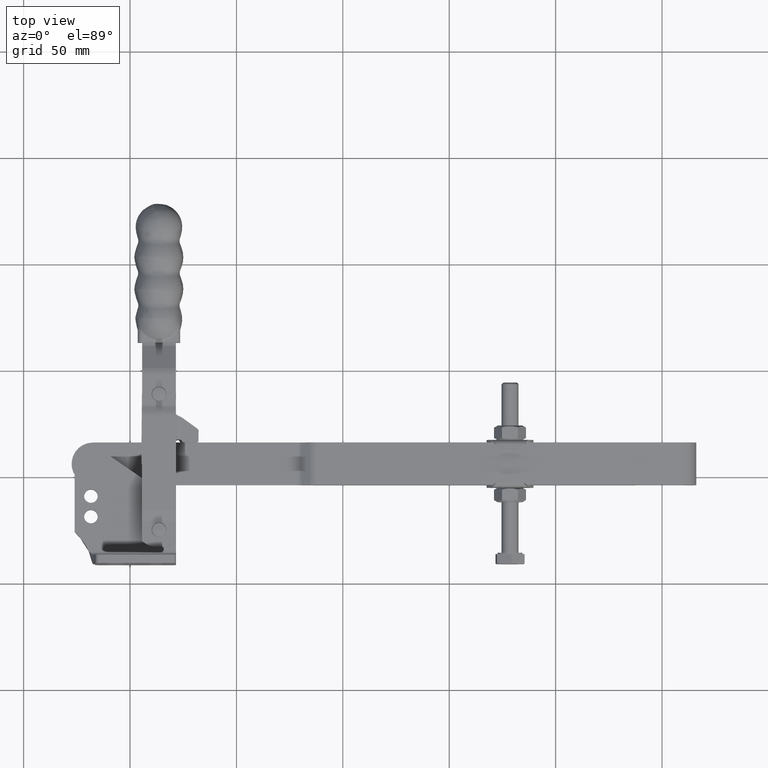
[diagram: clean part render]
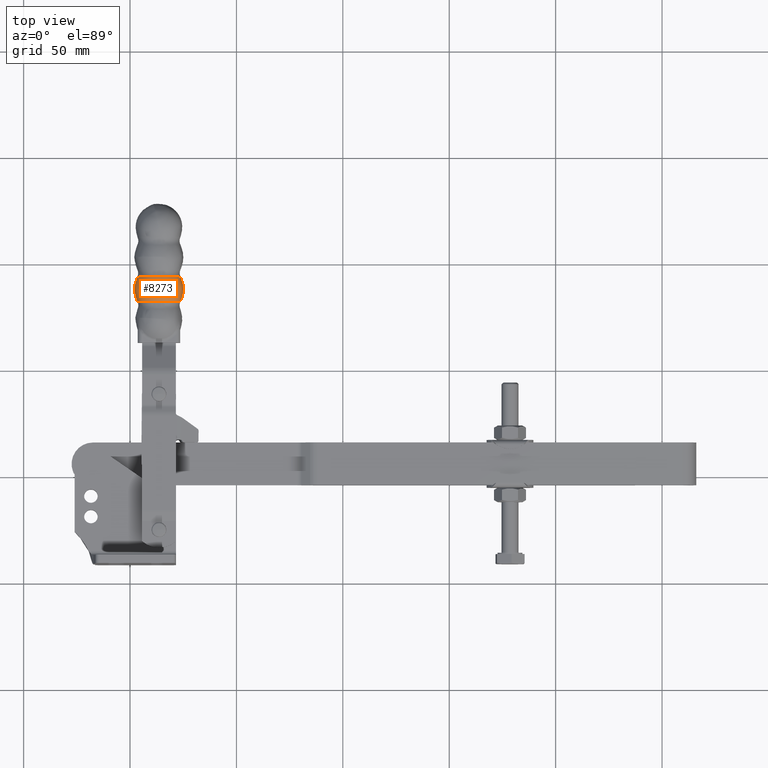
[diagram: same view with one face highlighted and labeled with its STEP entity id]
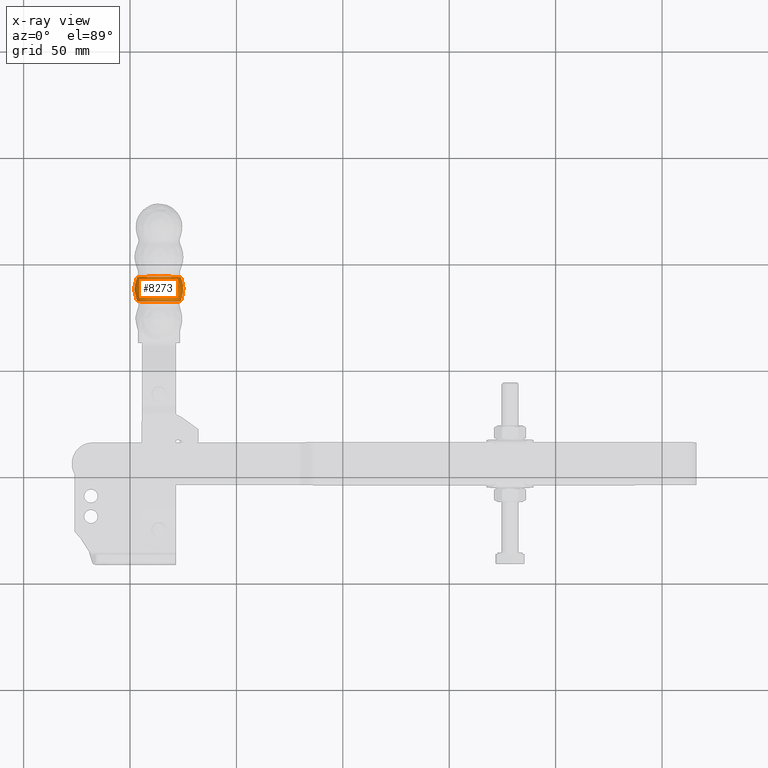
[diagram: x-ray of the same camera — body ghosted, the highlighted face saturated]
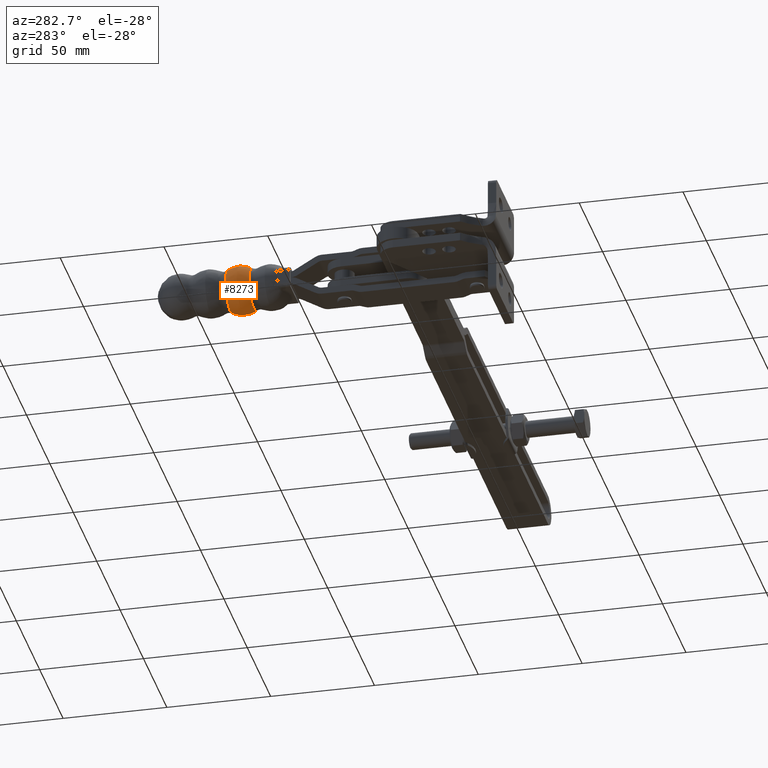
[diagram: same view with one face highlighted and labeled with its STEP entity id]
A machine part, top view. The second image highlights one B-rep face of the part: STEP entity #8273.
The next image is the same camera in x-ray: the body ghosted, the highlighted face saturated — about 0% of this face is hidden behind the body in this view.
A second angle (auxiliary view) of the same face is appended — the face is thin or edge-on in the first view.
In plain terms, the highlighted spherical surface has radius 11.6674 mm.
Its self-contained STEP definition (entity closure, byte-faithful):
#8242=CARTESIAN_POINT('',(23.838209915954934,143.60786394486871,2.999865371555851));
#8243=VERTEX_POINT('',#8242);
#8244=CARTESIAN_POINT('',(13.594458075488927,143.60786394486871,2.999865371555852));
#8245=DIRECTION('',(0.0,1.0,0.0));
#8246=DIRECTION('',(-1.0,0.0,0.0));
#8247=AXIS2_PLACEMENT_3D('',#8244,#8245,#8246);
#8248=CIRCLE('',#8247,10.243751840466008);
#8249=EDGE_CURVE('',#8243,#8243,#8248,.T.);
#8254=CARTESIAN_POINT('',(13.594458075488927,138.02266435300544,2.999865371555839));
#8255=DIRECTION('',(0.0,0.0,1.0));
#8256=DIRECTION('',(1.0,0.0,0.0));
#8257=AXIS2_PLACEMENT_3D('',#8254,#8255,#8256);
#8258=SPHERICAL_SURFACE('',#8257,11.667429290550704);
#8259=ORIENTED_EDGE('',*,*,#8249,.F.);
#8260=EDGE_LOOP('',(#8259));
#8261=FACE_OUTER_BOUND('',#8260,.T.);
#8262=CARTESIAN_POINT('',(23.775019305567014,132.3230960105227,2.999865371555829));
#8263=VERTEX_POINT('',#8262);
#8264=CARTESIAN_POINT('',(13.594458075488927,132.3230960105227,2.999865371555827));
#8265=DIRECTION('',(0.0,-1.0,0.0));
#8266=DIRECTION('',(-1.0,0.0,0.0));
#8267=AXIS2_PLACEMENT_3D('',#8264,#8265,#8266);
#8268=CIRCLE('',#8267,10.180561230078094);
#8269=EDGE_CURVE('',#8263,#8263,#8268,.T.);
#8270=ORIENTED_EDGE('',*,*,#8269,.F.);
#8271=EDGE_LOOP('',(#8270));
#8272=FACE_BOUND('',#8271,.T.);
#8273=ADVANCED_FACE('',(#8261,#8272),#8258,.T.);